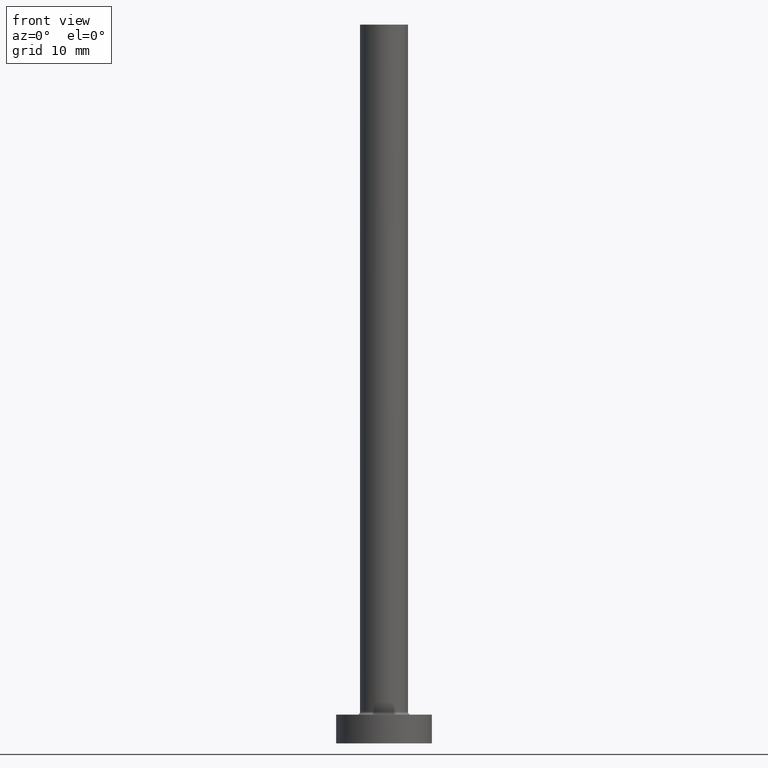
[diagram: clean part render]
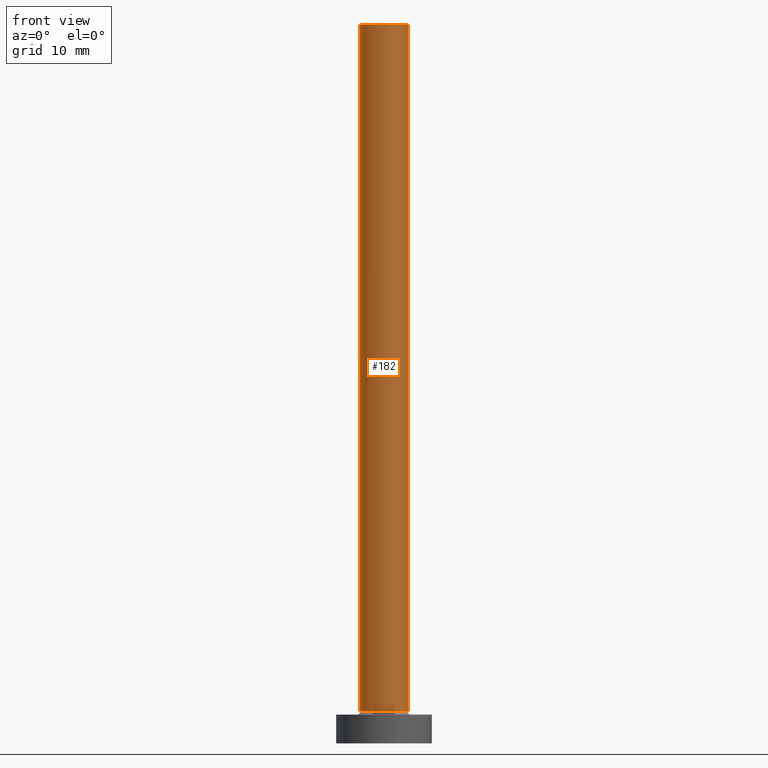
[diagram: same view with one face highlighted and labeled with its STEP entity id]
A machine part, front view. The second image highlights one B-rep face of the part: STEP entity #182.
In plain terms, the highlighted cylindrical surface (edge-blend (fillet) strip) has radius 2.5 mm, axis along (-0, -0, -1).
Its self-contained STEP definition (entity closure, byte-faithful):
#11 = VERTEX_POINT ( 'NONE', #105 ) ;
#21 = CARTESIAN_POINT ( 'NONE',  ( 0.000000000000000000, 0.000000000000000000, 75.00000000000001421 ) ) ;
#22 = CIRCLE ( 'NONE', #103, 2.500000000000000000 ) ;
#23 = DIRECTION ( 'NONE',  ( 1.000000000000000000, 0.000000000000000000, 0.000000000000000000 ) ) ;
#25 = DIRECTION ( 'NONE',  ( -0.000000000000000000, -0.000000000000000000, -1.000000000000000000 ) ) ;
#29 = CARTESIAN_POINT ( 'NONE',  ( 0.000000000000000000, 0.000000000000000000, 3.299999999999997158 ) ) ;
#44 = EDGE_CURVE ( 'NONE', #11, #256, #321, .T. ) ;
#51 = ORIENTED_EDGE ( 'NONE', *, *, #126, .F. ) ;
#53 = DIRECTION ( 'NONE',  ( 0.000000000000000000, 0.000000000000000000, 1.000000000000000000 ) ) ;
#78 = VECTOR ( 'NONE', #345, 1000.000000000000000 ) ;
#97 = CARTESIAN_POINT ( 'NONE',  ( 2.500000000000000000, 3.061616997868383141E-16, 3.299999999999997158 ) ) ;
#103 = AXIS2_PLACEMENT_3D ( 'NONE', #21, #53, #23 ) ;
#105 = CARTESIAN_POINT ( 'NONE',  ( -2.500000000000000000, 0.000000000000000000, 3.299999999999997158 ) ) ;
#126 = EDGE_CURVE ( 'NONE', #420, #292, #22, .T. ) ;
#134 = CARTESIAN_POINT ( 'NONE',  ( 2.500000000000000000, 3.061616997868383141E-16, 75.00000000000001421 ) ) ;
#135 = CARTESIAN_POINT ( 'NONE',  ( -2.500000000000000000, 0.000000000000000000, 75.00000000000001421 ) ) ;
#140 = EDGE_CURVE ( 'NONE', #292, #256, #335, .T. ) ;
#182 = ADVANCED_FACE ( 'NONE', ( #196 ), #347, .T. ) ;
#184 = AXIS2_PLACEMENT_3D ( 'NONE', #29, #252, #391 ) ;
#185 = CARTESIAN_POINT ( 'NONE',  ( -2.500000000000000000, 0.000000000000000000, 75.00000000000001421 ) ) ;
#196 = FACE_OUTER_BOUND ( 'NONE', #319, .T. ) ;
#209 = CARTESIAN_POINT ( 'NONE',  ( 0.000000000000000000, 0.000000000000000000, 75.00000000000001421 ) ) ;
#212 = VECTOR ( 'NONE', #276, 1000.000000000000000 ) ;
#221 = EDGE_CURVE ( 'NONE', #420, #11, #299, .T. ) ;
#234 = ORIENTED_EDGE ( 'NONE', *, *, #44, .T. ) ;
#252 = DIRECTION ( 'NONE',  ( 0.000000000000000000, 0.000000000000000000, 1.000000000000000000 ) ) ;
#256 = VERTEX_POINT ( 'NONE', #97 ) ;
#265 = CARTESIAN_POINT ( 'NONE',  ( 2.500000000000000000, 3.061616997868383141E-16, 75.00000000000001421 ) ) ;
#276 = DIRECTION ( 'NONE',  ( -0.000000000000000000, -0.000000000000000000, -1.000000000000000000 ) ) ;
#292 = VERTEX_POINT ( 'NONE', #265 ) ;
#299 = LINE ( 'NONE', #135, #78 ) ;
#302 = ORIENTED_EDGE ( 'NONE', *, *, #221, .T. ) ;
#319 = EDGE_LOOP ( 'NONE', ( #454, #51, #302, #234 ) ) ;
#321 = CIRCLE ( 'NONE', #184, 2.500000000000000000 ) ;
#334 = AXIS2_PLACEMENT_3D ( 'NONE', #209, #25, #336 ) ;
#335 = LINE ( 'NONE', #134, #212 ) ;
#336 = DIRECTION ( 'NONE',  ( -1.000000000000000000, 0.000000000000000000, 0.000000000000000000 ) ) ;
#345 = DIRECTION ( 'NONE',  ( -0.000000000000000000, -0.000000000000000000, -1.000000000000000000 ) ) ;
#347 = CYLINDRICAL_SURFACE ( 'NONE', #334, 2.500000000000000000 ) ;
#391 = DIRECTION ( 'NONE',  ( 1.000000000000000000, 0.000000000000000000, 0.000000000000000000 ) ) ;
#420 = VERTEX_POINT ( 'NONE', #185 ) ;
#454 = ORIENTED_EDGE ( 'NONE', *, *, #140, .F. ) ;